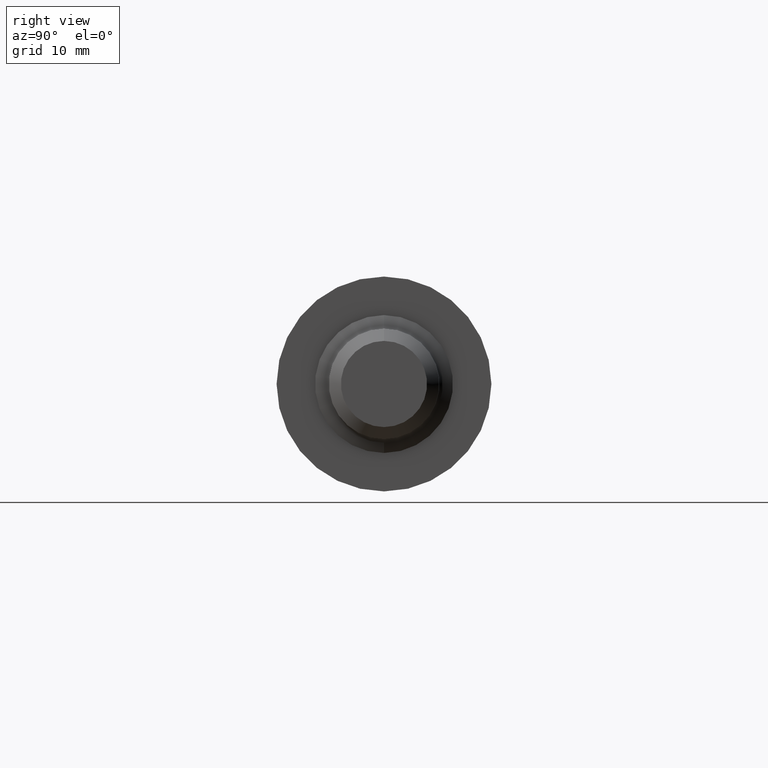
[diagram: clean part render]
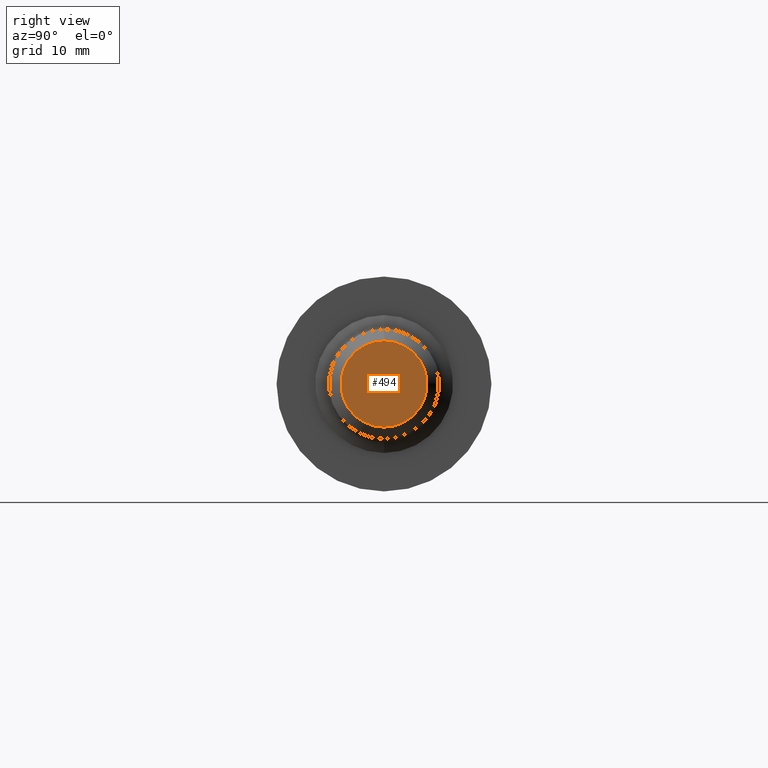
[diagram: same view with one face highlighted and labeled with its STEP entity id]
A machine part, right view. The second image highlights one B-rep face of the part: STEP entity #494.
In plain terms, the highlighted planar face has unit normal (-1, 0, -0).
Its self-contained STEP definition (entity closure, byte-faithful):
#29 = EDGE_CURVE ( 'NONE', #380, #313, #175, .T. ) ;
#103 = FACE_OUTER_BOUND ( 'NONE', #552, .T. ) ;
#175 = CIRCLE ( 'NONE', #252, 0.1781000000000000638 ) ;
#230 = CARTESIAN_POINT ( 'NONE',  ( 2.750000000000000000, 0.000000000000000000, 0.000000000000000000 ) ) ;
#252 = AXIS2_PLACEMENT_3D ( 'NONE', #291, #680, #689 ) ;
#254 = DIRECTION ( 'NONE',  ( -0.000000000000000000, 0.000000000000000000, 1.000000000000000000 ) ) ;
#291 = CARTESIAN_POINT ( 'NONE',  ( 2.750000000000000000, 0.000000000000000000, 0.000000000000000000 ) ) ;
#306 = CARTESIAN_POINT ( 'NONE',  ( 2.750000000000000000, 0.1781000000000000638, 0.000000000000000000 ) ) ;
#313 = VERTEX_POINT ( 'NONE', #618 ) ;
#380 = VERTEX_POINT ( 'NONE', #667 ) ;
#386 = AXIS2_PLACEMENT_3D ( 'NONE', #306, #525, #254 ) ;
#410 = AXIS2_PLACEMENT_3D ( 'NONE', #230, #506, #443 ) ;
#437 = CIRCLE ( 'NONE', #410, 0.1781000000000000638 ) ;
#443 = DIRECTION ( 'NONE',  ( 0.000000000000000000, 0.000000000000000000, 1.000000000000000000 ) ) ;
#460 = ORIENTED_EDGE ( 'NONE', *, *, #29, .F. ) ;
#494 = ADVANCED_FACE ( 'NONE', ( #103 ), #578, .F. ) ;
#506 = DIRECTION ( 'NONE',  ( -1.000000000000000000, -0.000000000000000000, -0.000000000000000000 ) ) ;
#525 = DIRECTION ( 'NONE',  ( -1.000000000000000000, 0.000000000000000000, -0.000000000000000000 ) ) ;
#552 = EDGE_LOOP ( 'NONE', ( #619, #460 ) ) ;
#578 = PLANE ( 'NONE',  #386 ) ;
#618 = CARTESIAN_POINT ( 'NONE',  ( 2.750000000000000000, 0.000000000000000000, 0.1781000000000000638 ) ) ;
#619 = ORIENTED_EDGE ( 'NONE', *, *, #630, .F. ) ;
#630 = EDGE_CURVE ( 'NONE', #313, #380, #437, .T. ) ;
#667 = CARTESIAN_POINT ( 'NONE',  ( 2.750000000000000000, 2.487257649068274649E-17, -0.1781000000000000638 ) ) ;
#680 = DIRECTION ( 'NONE',  ( -1.000000000000000000, -0.000000000000000000, -0.000000000000000000 ) ) ;
#689 = DIRECTION ( 'NONE',  ( 0.000000000000000000, 0.000000000000000000, 1.000000000000000000 ) ) ;